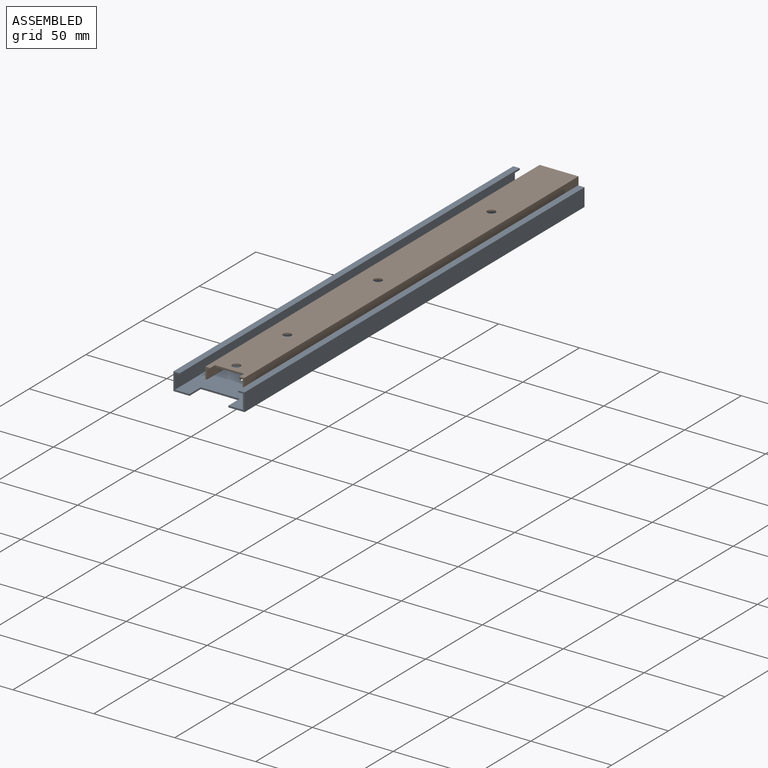
[diagram: assembled view]
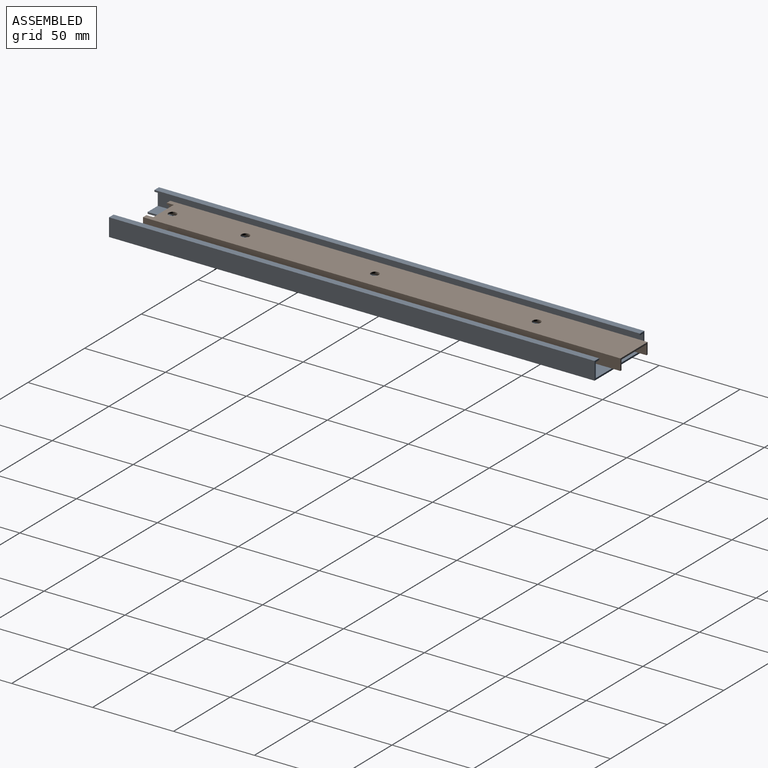
[diagram: assembled view, second angle]
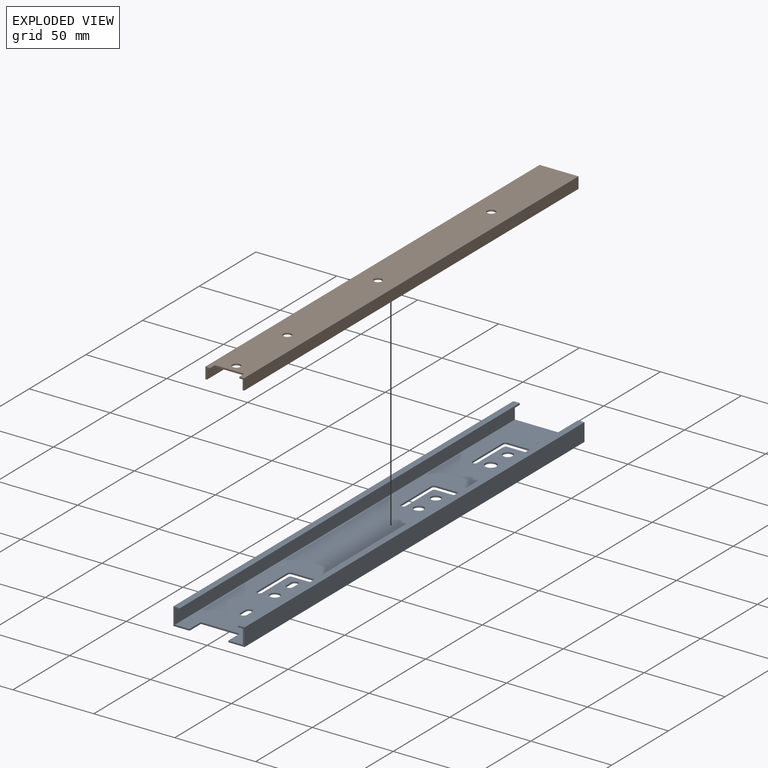
[diagram: exploded view]
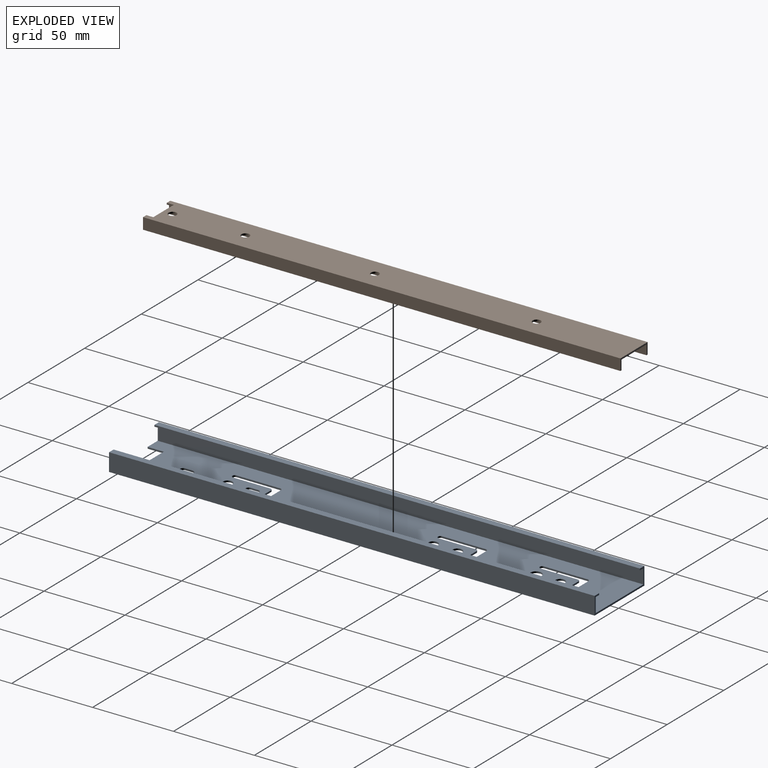
[diagram: exploded view, second angle]
ASSEMBLY  parts=2 mates=2
PART A: 67 faces, bbox 44x300x11 mm
  f0: plane 300x44mm, normal (0,0,-1), area 12045.1mm2, adj f1,f2,f3,f4,f14,f15,f16,f17
  f1: plane 11x10mm, normal (0,-1,0), area 23mm2, adj f0,f4,f5,f6,f7,f8,f9,f16
  f2: plane 11x10mm, normal (0,-1,0), area 23mm2, adj f0,f3,f9,f10,f11,f12,f13,f17
  f3: plane 300x11mm, normal (-1,0,0), area 3300mm2, adj f0,f2,f13,f14
  f4: plane 300x11mm, normal (1,0,0), area 3300mm2, adj f0,f1,f5,f14
  f5: plane 300x4mm, normal (0,0,1), area 1200mm2, adj f1,f4,f6,f14
  f6: plane 300x1mm, normal (-1,0,0), area 300mm2, adj f1,f5,f7,f14
  f7: plane 300x3mm, normal (0,0,-1), area 900mm2, adj f1,f6,f8,f14
  f8: plane 300x9mm, normal (-1,0,0), area 2700mm2, adj f1,f7,f9,f14
  f9: plane 300x42mm, normal (0,0,1), area 11445.1mm2, adj f1,f2,f8,f10,f14,f15,f16,f17
  f10: plane 300x9mm, normal (1,0,0), area 2700mm2, adj f2,f9,f11,f14
  f11: plane 300x3mm, normal (0,0,-1), area 900mm2, adj f2,f10,f12,f14
  f12: plane 300x1mm, normal (1,0,0), area 300mm2, adj f2,f11,f13,f14
  f13: plane 300x4mm, normal (0,0,1), area 1200mm2, adj f2,f3,f12,f14
  f14: plane 44x11mm, normal (0,1,0), area 70mm2, adj f0,f3,f4,f5,f6,f7,f8,f9
  f15: plane 24x1mm, normal (0,-1,0), area 24mm2, adj f0,f9,f16,f17
  f16: plane 10x1mm, normal (-1,0,0), area 10mm2, adj f0,f1,f9,f15
  f17: plane 10x1mm, normal (1,0,0), area 10mm2, adj f0,f2,f9,f15
  f18: cylinder r=2mm len=4mm, axis (0,0,1), area 6.3mm2, adj f0,f9,f19,f21
  f19: plane 4.5x1mm, normal (1,0,0), area 4.5mm2, adj f0,f9,f18,f20
  f20: cylinder r=2mm len=4mm, axis (0,0,1), area 6.3mm2, adj f0,f9,f19,f21
  f21: plane 4.5x1mm, normal (-1,0,0), area 4.5mm2, adj f0,f9,f18,f20
  f22: cylinder r=3mm len=6mm, axis (0,0,1), area 18.8mm2, adj f0,f9
  f23: cylinder r=3mm len=6mm, axis (0,0,1), area 18.8mm2, adj f0,f9
  f24: cylinder r=1.5mm len=3mm, axis (0,0,1), area 4.7mm2, adj f0,f9,f25,f35
  f25: plane 23x1mm, normal (-1,0,0), area 23mm2, adj f0,f9,f24,f26
  f26: cylinder r=1.5mm len=1.5mm, axis (0,0,1), area 2.4mm2, adj f0,f9,f25,f27
  f27: plane 11x1mm, normal (0,1,0), area 11mm2, adj f0,f9,f26,f28
  f28: cylinder r=1.5mm len=1.5mm, axis (0,0,1), area 2.4mm2, adj f0,f9,f27,f29
  f29: plane 23x1mm, normal (1,0,0), area 23mm2, adj f0,f9,f28,f30
  f30: cylinder r=1.5mm len=3mm, axis (0,0,1), area 4.7mm2, adj f0,f9,f29,f31
  f31: plane 27x1mm, normal (-1,0,0), area 27mm2, adj f0,f9,f30,f32
  f32: cylinder r=1.5mm len=1.5mm, axis (0,0,1), area 2.4mm2, adj f0,f9,f31,f33
  f33: plane 17x1mm, normal (0,-1,0), area 17mm2, adj f0,f9,f32,f34
  f34: cylinder r=1.5mm len=1.5mm, axis (0,0,1), area 2.4mm2, adj f0,f9,f33,f35
  f35: plane 27x1mm, normal (1,0,0), area 27mm2, adj f0,f9,f24,f34
  f36: cylinder r=2mm len=4mm, axis (0,0,1), area 6.3mm2, adj f0,f9,f37,f39
  f37: plane 4.5x1mm, normal (1,0,0), area 4.5mm2, adj f0,f9,f36,f38
  f38: cylinder r=2mm len=4mm, axis (0,0,1), area 6.3mm2, adj f0,f9,f37,f39
  f39: plane 4.5x1mm, normal (-1,0,0), area 4.5mm2, adj f0,f9,f36,f38
  f40: cylinder r=3mm len=6mm, axis (0,0,1), area 18.8mm2, adj f0,f9
  f41: cylinder r=1.5mm len=3mm, axis (0,0,1), area 4.7mm2, adj f0,f9,f42,f52
  f42: plane 23x1mm, normal (-1,0,0), area 23mm2, adj f0,f9,f41,f43
  f43: cylinder r=1.5mm len=1.5mm, axis (0,0,1), area 2.4mm2, adj f0,f9,f42,f44
  f44: plane 11x1mm, normal (0,1,0), area 11mm2, adj f0,f9,f43,f45
  f45: cylinder r=1.5mm len=1.5mm, axis (0,0,1), area 2.4mm2, adj f0,f9,f44,f46
  f46: plane 23x1mm, normal (1,0,0), area 23mm2, adj f0,f9,f45,f47
  f47: cylinder r=1.5mm len=3mm, axis (0,0,1), area 4.7mm2, adj f0,f9,f46,f48
  f48: plane 27x1mm, normal (-1,0,0), area 27mm2, adj f0,f9,f47,f49
  f49: cylinder r=1.5mm len=1.5mm, axis (0,0,1), area 2.4mm2, adj f0,f9,f48,f50
  f50: plane 17x1mm, normal (0,-1,0), area 17mm2, adj f0,f9,f49,f51
  f51: cylinder r=1.5mm len=1.5mm, axis (0,0,1), area 2.4mm2, adj f0,f9,f50,f52
  f52: plane 27x1mm, normal (1,0,0), area 27mm2, adj f0,f9,f41,f51
  f53: cylinder r=3mm len=6mm, axis (0,0,1), area 18.8mm2, adj f0,f9
  f54: cylinder r=3.5mm len=7mm, axis (0,0,1), area 22mm2, adj f0,f9
  f55: cylinder r=1.5mm len=3mm, axis (0,0,1), area 4.7mm2, adj f0,f9,f56,f66
  f56: plane 23x1mm, normal (-1,0,0), area 23mm2, adj f0,f9,f55,f57
  f57: cylinder r=1.5mm len=1.5mm, axis (0,0,1), area 2.4mm2, adj f0,f9,f56,f58
  f58: plane 11x1mm, normal (0,1,0), area 11mm2, adj f0,f9,f57,f59
  f59: cylinder r=1.5mm len=1.5mm, axis (0,0,1), area 2.4mm2, adj f0,f9,f58,f60
  f60: plane 23x1mm, normal (1,0,0), area 23mm2, adj f0,f9,f59,f61
  f61: cylinder r=1.5mm len=3mm, axis (0,0,1), area 4.7mm2, adj f0,f9,f60,f62
  f62: plane 27x1mm, normal (-1,0,0), area 27mm2, adj f0,f9,f61,f63
  f63: cylinder r=1.5mm len=1.5mm, axis (0,0,1), area 2.4mm2, adj f0,f9,f62,f64
  f64: plane 17x1mm, normal (0,-1,0), area 17mm2, adj f0,f9,f63,f65
  f65: cylinder r=1.5mm len=1.5mm, axis (0,0,1), area 2.4mm2, adj f0,f9,f64,f66
  f66: plane 27x1mm, normal (1,0,0), area 27mm2, adj f0,f9,f55,f65
PART B: 18 faces, bbox 24x295x7 mm
  f0: plane 295x24mm, normal (0,0,1), area 6924.5mm2, adj f2,f3,f8,f9,f10,f11,f12,f13
  f1: plane 295x22mm, normal (0,0,-1), area 6334.5mm2, adj f2,f5,f6,f9,f10,f11,f12,f13
  f2: plane 7x3mm, normal (0,-1,0), area 9mm2, adj f0,f1,f3,f4,f5,f11
  f3: plane 295x7mm, normal (-1,0,0), area 2065mm2, adj f0,f2,f4,f10
  f4: plane 295x1mm, normal (0,0,-1), area 295mm2, adj f2,f3,f5,f10
  f5: plane 295x6mm, normal (1,0,0), area 1770mm2, adj f1,f2,f4,f10
  f6: plane 295x6mm, normal (-1,0,0), area 1770mm2, adj f1,f7,f9,f10
  f7: plane 295x1mm, normal (0,0,-1), area 295mm2, adj f6,f8,f9,f10
  f8: plane 295x7mm, normal (1,0,0), area 2065mm2, adj f0,f7,f9,f10
  f9: plane 7x3mm, normal (0,-1,0), area 9mm2, adj f0,f1,f6,f7,f8,f12
  f10: plane 24x7mm, normal (0,1,0), area 36mm2, adj f0,f1,f3,f4,f5,f6,f7,f8
  f11: plane 4.28x1mm, normal (1,0,0), area 4.3mm2, adj f0,f1,f2,f13
  f12: plane 4.28x1mm, normal (-1,0,0), area 4.3mm2, adj f0,f1,f9,f13
  f13: plane 18x1mm, normal (0,-1,0), area 18mm2, adj f0,f1,f11,f12
  f14: cylinder r=2.5mm len=5mm, axis (0,0,1), area 15.7mm2, adj f0,f1
  f15: cylinder r=2.5mm len=5mm, axis (0,0,1), area 15.7mm2, adj f0,f1
  f16: cylinder r=2.5mm len=5mm, axis (0,0,1), area 15.7mm2, adj f0,f1
  f17: cylinder r=2.5mm len=5mm, axis (0,0,1), area 15.7mm2, adj f0,f1
PLACE A t=(0.66,0.9,-3.57)mm fixed
PLACE B t=(0.66,12.37,-3.57)mm
MATE planar A.f5 <-> B.f0  axis (0,0,1) through (20.49,0.9,6.43)mm
MATE planar B.f8 <-> A.f16  axis (1,0,0) through (12.49,12.37,2.93)mm
